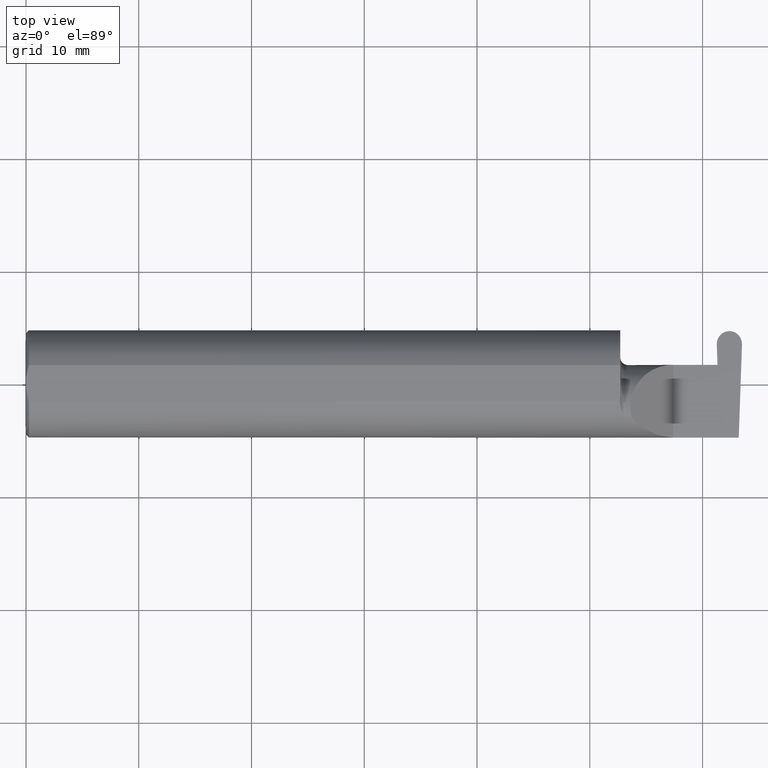
[diagram: clean part render]
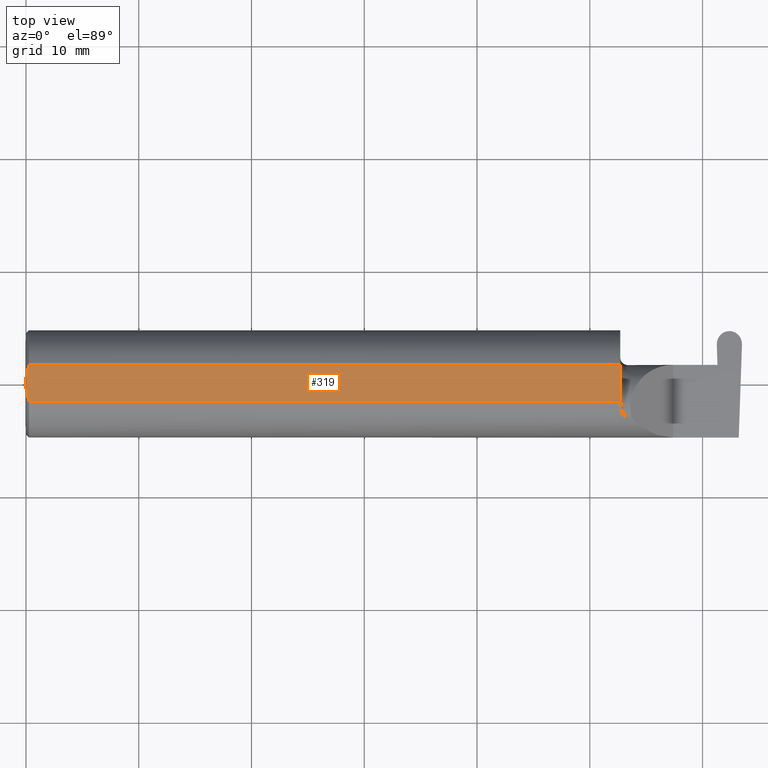
[diagram: same view with one face highlighted and labeled with its STEP entity id]
A machine part, top view. The second image highlights one B-rep face of the part: STEP entity #319.
In plain terms, the highlighted planar face has unit normal (0, 0, 1).
Its self-contained STEP definition (entity closure, byte-faithful):
#12 = VECTOR ( 'NONE', #194, 39.37007874015748143 ) ;
#37 = ORIENTED_EDGE ( 'NONE', *, *, #370, .F. ) ;
#40 = DIRECTION ( 'NONE',  ( 0.000000000000000000, 0.000000000000000000, 1.000000000000000000 ) ) ;
#44 = ORIENTED_EDGE ( 'NONE', *, *, #222, .F. ) ;
#57 = VERTEX_POINT ( 'NONE', #376 ) ;
#67 = CARTESIAN_POINT ( 'NONE',  ( 0.000000000000000000, 0.01880691362239451242, 0.1763499999999999235 ) ) ;
#69 = LINE ( 'NONE', #498, #391 ) ;
#88 = VERTEX_POINT ( 'NONE', #67 ) ;
#90 = CARTESIAN_POINT ( 'NONE',  ( 0.000000000000000000, -0.06325108694718235836, 0.1763499999999999235 ) ) ;
#99 = CARTESIAN_POINT ( 'NONE',  ( 0.001595548104417217512, -0.03385300050298979679, 0.1763499999999999235 ) ) ;
#110 = ORIENTED_EDGE ( 'NONE', *, *, #515, .T. ) ;
#135 = CARTESIAN_POINT ( 'NONE',  ( 0.001616639753276218755, 0.03405189565400963680, 0.1763499999999999235 ) ) ;
#138 = LINE ( 'NONE', #200, #686 ) ;
#176 = CARTESIAN_POINT ( 'NONE',  ( 0.000000000000000000, 0.01880691362239451242, 0.1763499999999999235 ) ) ;
#189 = VERTEX_POINT ( 'NONE', #242 ) ;
#194 = DIRECTION ( 'NONE',  ( 1.000000000000000000, 0.000000000000000000, 0.000000000000000000 ) ) ;
#200 = CARTESIAN_POINT ( 'NONE',  ( 0.000000000000000000, 0.1873499999999998500, 0.1763499999999999235 ) ) ;
#202 = PLANE ( 'NONE',  #450 ) ;
#210 = VERTEX_POINT ( 'NONE', #570 ) ;
#212 = VERTEX_POINT ( 'NONE', #291 ) ;
#222 = EDGE_CURVE ( 'NONE', #88, #57, #431, .T. ) ;
#237 = CARTESIAN_POINT ( 'NONE',  ( 0.005155213631852355663, 0.04890080824240217866, 0.1763499999999999235 ) ) ;
#242 = CARTESIAN_POINT ( 'NONE',  ( 2.075000000000000178, -0.06325108694718283020, 0.1763499999999999235 ) ) ;
#269 = ORIENTED_EDGE ( 'NONE', *, *, #345, .T. ) ;
#273 = EDGE_CURVE ( 'NONE', #189, #210, #282, .T. ) ;
#282 = LINE ( 'NONE', #501, #336 ) ;
#291 = CARTESIAN_POINT ( 'NONE',  ( 0.009999999999999346217, -0.06325108694718235836, 0.1763499999999999235 ) ) ;
#319 = ADVANCED_FACE ( 'NONE', ( #691 ), #202, .T. ) ;
#336 = VECTOR ( 'NONE', #446, 39.37007874015748143 ) ;
#345 = EDGE_CURVE ( 'NONE', #212, #189, #597, .T. ) ;
#349 = CARTESIAN_POINT ( 'NONE',  ( 0.009999999999999346217, 0.06325108694718235836, 0.1763499999999999235 ) ) ;
#370 = EDGE_CURVE ( 'NONE', #212, #702, #576, .T. ) ;
#376 = CARTESIAN_POINT ( 'NONE',  ( 0.009999999999999346217, 0.06325108694718235836, 0.1763499999999999235 ) ) ;
#391 = VECTOR ( 'NONE', #612, 39.37007874015748143 ) ;
#424 = DIRECTION ( 'NONE',  ( 1.000000000000000000, 0.000000000000000000, -0.000000000000000000 ) ) ;
#431 = B_SPLINE_CURVE_WITH_KNOTS ( 'NONE', 3,
 ( #176, #135, #237, #349 ),
 .UNSPECIFIED., .F., .F.,
 ( 4, 4 ),
 ( 0.01188664626022267051, 0.01304646959483758001 ),
 .UNSPECIFIED. ) ;
#446 = DIRECTION ( 'NONE',  ( -5.069406624455083742E-17, 1.000000000000000000, 0.000000000000000000 ) ) ;
#450 = AXIS2_PLACEMENT_3D ( 'NONE', #704, #40, #424 ) ;
#460 = CARTESIAN_POINT ( 'NONE',  ( 0.000000000000000000, -0.01880691362239451242, 0.1763499999999999235 ) ) ;
#498 = CARTESIAN_POINT ( 'NONE',  ( 0.000000000000000000, 0.06325108694718235836, 0.1763499999999999235 ) ) ;
#501 = CARTESIAN_POINT ( 'NONE',  ( 2.075000000000000178, 0.1873499999999998222, 0.1763499999999999235 ) ) ;
#515 = EDGE_CURVE ( 'NONE', #210, #57, #69, .T. ) ;
#522 = CARTESIAN_POINT ( 'NONE',  ( 0.000000000000000000, -0.01880691362239451242, 0.1763499999999999235 ) ) ;
#523 = EDGE_LOOP ( 'NONE', ( #269, #567, #110, #44, #701, #37 ) ) ;
#567 = ORIENTED_EDGE ( 'NONE', *, *, #273, .T. ) ;
#570 = CARTESIAN_POINT ( 'NONE',  ( 2.075000000000000178, 0.06325108694718235836, 0.1763499999999999235 ) ) ;
#576 = B_SPLINE_CURVE_WITH_KNOTS ( 'NONE', 3,
 ( #633, #687, #99, #522 ),
 .UNSPECIFIED., .F., .F.,
 ( 4, 4 ),
 ( 0.009771445421851449736, 0.01092787937989102981 ),
 .UNSPECIFIED. ) ;
#597 = LINE ( 'NONE', #90, #12 ) ;
#609 = EDGE_CURVE ( 'NONE', #702, #88, #138, .T. ) ;
#612 = DIRECTION ( 'NONE',  ( -1.000000000000000000, -0.000000000000000000, -0.000000000000000000 ) ) ;
#633 = CARTESIAN_POINT ( 'NONE',  ( 0.009999999999999346217, -0.06325108694718235836, 0.1763499999999999235 ) ) ;
#686 = VECTOR ( 'NONE', #689, 39.37007874015748143 ) ;
#687 = CARTESIAN_POINT ( 'NONE',  ( 0.005151108632379595466, -0.04888864921576189376, 0.1763499999999999235 ) ) ;
#689 = DIRECTION ( 'NONE',  ( -0.000000000000000000, 1.000000000000000000, -0.000000000000000000 ) ) ;
#691 = FACE_OUTER_BOUND ( 'NONE', #523, .T. ) ;
#701 = ORIENTED_EDGE ( 'NONE', *, *, #609, .F. ) ;
#702 = VERTEX_POINT ( 'NONE', #460 ) ;
#704 = CARTESIAN_POINT ( 'NONE',  ( 2.876828993045917215, 0.1873499999999998500, 0.1763499999999999235 ) ) ;